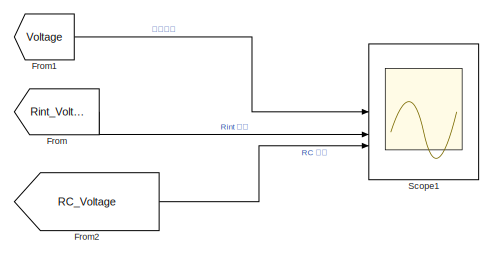
[diagram: root canvas - part 1/5, top right region]
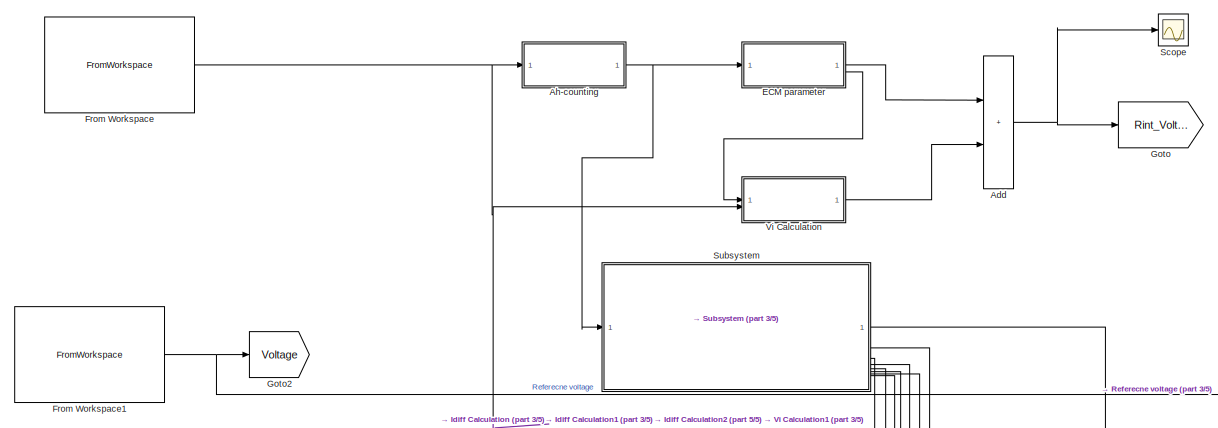
[diagram: root canvas - part 2/5, top left region]
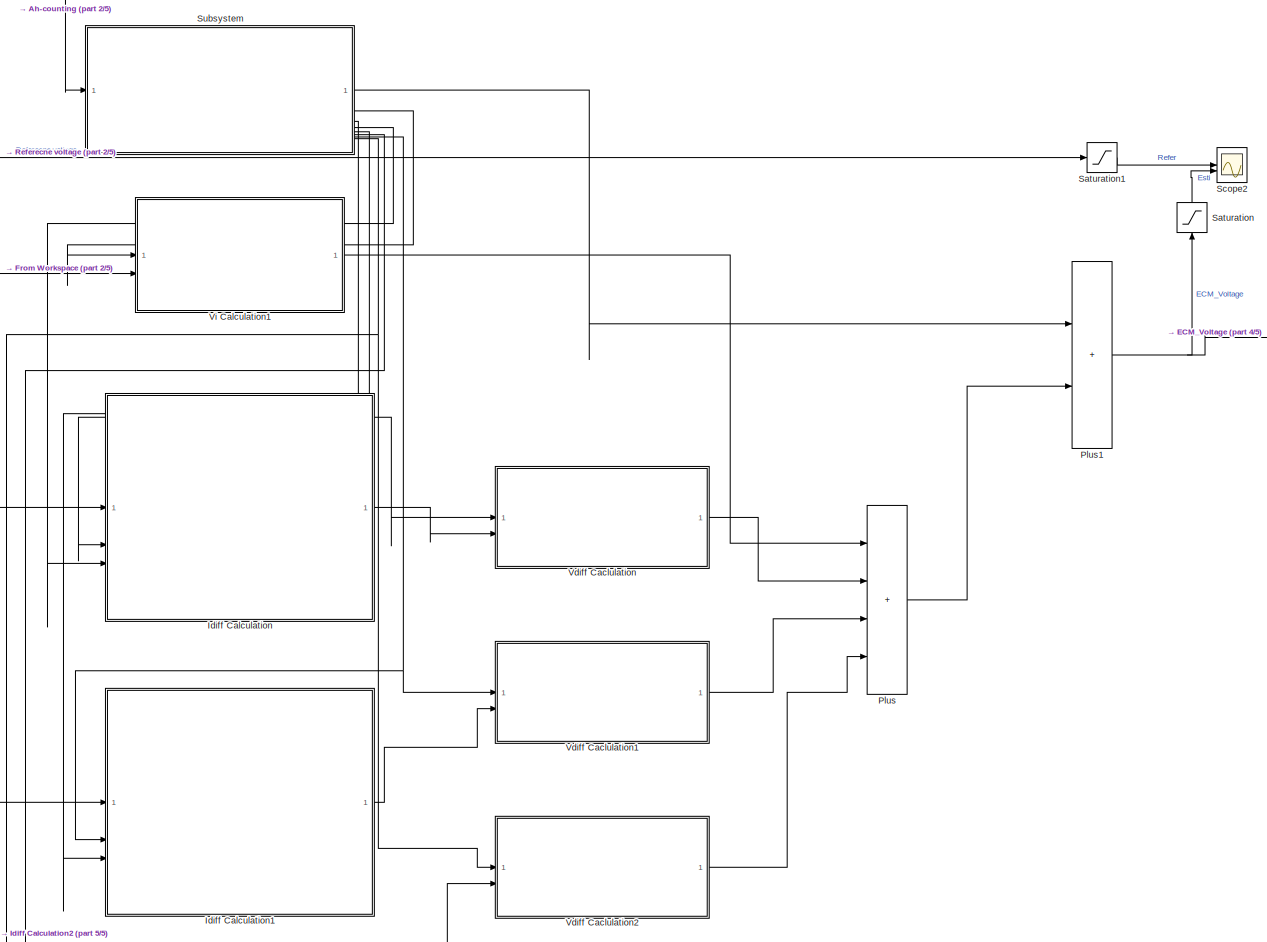
[diagram: root canvas - part 3/5, central region]
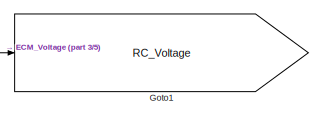
[diagram: root canvas - part 4/5, middle right region]
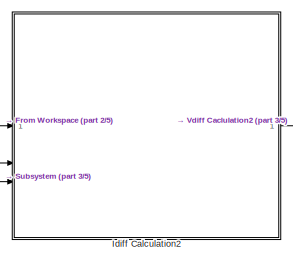
[diagram: root canvas - part 5/5, bottom center region]
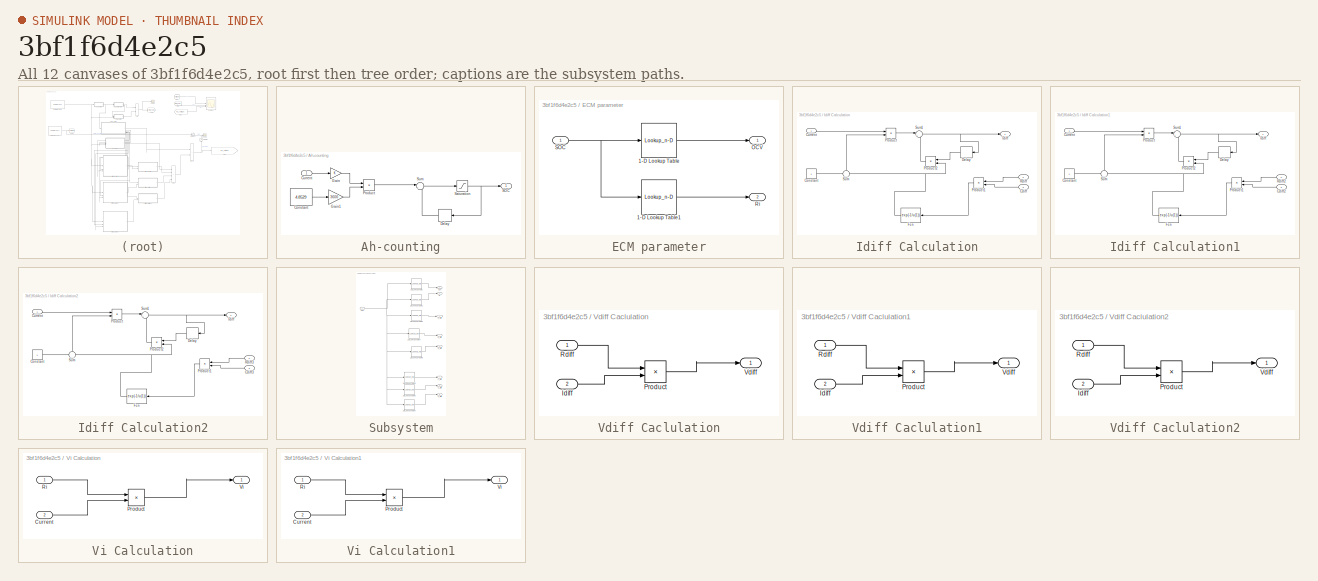
[diagram: thumbnail index - all 12 canvases of the model, root first then tree order]
MODEL slx_3bf1f6d4e2c5
KIND model
CONFIG AbsTol = auto
CONFIG EnableMultiTasking = off
CONFIG FixedStep = auto
CONFIG MaxStep = auto
CONFIG MinStep = auto
CONFIG RelTol = 1e-3
CONFIG SampleTimeConstraint = Unconstrained
CONFIG SolverName = VariableStepAuto
CONFIG StartTime = 0.0
CONFIG StopTime = length(Current)
BLOCK [Sum] Add
  Commented = on
  IconShape = rectangular
BLOCK [SubSystem] Ah-counting
BLOCK [Constant] Ah-counting/Constant
  Value = 4.8529
BLOCK [Inport] Ah-counting/Current
BLOCK [Delay] Ah-counting/Delay
  DelayLength = 1
  InitialCondition = 1
  InputPortMap = u0
  NameLocation = top
BLOCK [Gain] Ah-counting/Gain
BLOCK [Gain] Ah-counting/Gain1
  Gain = 3600
BLOCK [Product] Ah-counting/Product
  Inputs = */
BLOCK [Outport] Ah-counting/SOC
BLOCK [Saturate] Ah-counting/Saturation
  LowerLimit = 0
  UpperLimit = 1
BLOCK [Sum] Ah-counting/Sum
  Inputs = |++
BLOCK [SubSystem] ECM parameter
  Commented = on
BLOCK [Lookup_n-D] ECM parameter/1-D Lookup Table
  BreakpointsForDimension1 = SOC(:,1);
  InputPortMap = u0
  InternalRulePriority = Speed
  NumberOfTableDimensions = 1
  RndMeth = Simplest
  Table = OCV(:,1);
BLOCK [Lookup_n-D] ECM parameter/1-D Lookup Table1
  BreakpointsForDimension1 = SOC(:,1);
  InputPortMap = u0
  InternalRulePriority = Speed
  NumberOfTableDimensions = 1
  RndMeth = Simplest
  Table = Ri(:,1);
BLOCK [Outport] ECM parameter/OCV
BLOCK [Outport] ECM parameter/Ri
  Port = 2
BLOCK [Inport] ECM parameter/SOC
BLOCK [From] From
  Commented = on
  GotoTag = Rint_Voltage
  TagVisibility = global
BLOCK [FromWorkspace] From Workspace
  OutDataTypeStr = double
  SampleTime = 1
  VariableName = Current_in
BLOCK [FromWorkspace] From Workspace1
  OutDataTypeStr = double
  SampleTime = 1
  VariableName = Voltage_in
BLOCK [From] From1
  Commented = on
  GotoTag = Voltage
  TagVisibility = global
BLOCK [From] From2
  Commented = on
  GotoTag = RC_Voltage
  TagVisibility = global
BLOCK [Goto] Goto
  Commented = on
  GotoTag = Rint_Voltage
  TagVisibility = global
BLOCK [Goto] Goto1
  GotoTag = RC_Voltage
  TagVisibility = global
BLOCK [Goto] Goto2
  GotoTag = Voltage
  TagVisibility = global
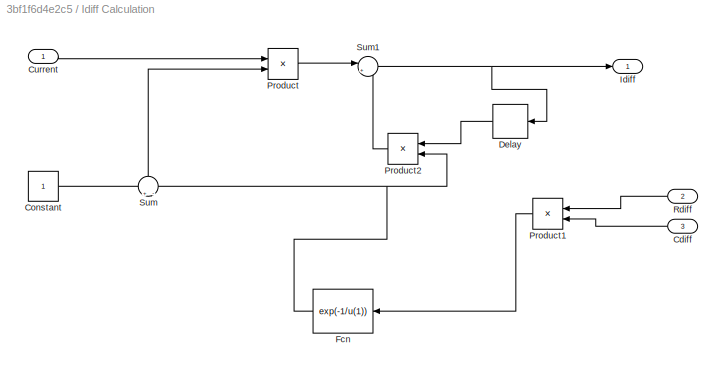
BLOCK [SubSystem] Idiff Calculation
BLOCK [Inport] Idiff Calculation/Cdiff
  NameLocation = top
  Port = 3
BLOCK [Constant] Idiff Calculation/Constant
BLOCK [Inport] Idiff Calculation/Current
BLOCK [Delay] Idiff Calculation/Delay
  DelayLength = 1
  InputPortMap = u0
  NameLocation = top
BLOCK [Fcn] Idiff Calculation/Fcn
  Expr = exp(-1/u(1))
  NameLocation = top
BLOCK [Outport] Idiff Calculation/Idiff
BLOCK [Product] Idiff Calculation/Product
BLOCK [Product] Idiff Calculation/Product1
  NameLocation = top
BLOCK [Product] Idiff Calculation/Product2
  NameLocation = top
BLOCK [Inport] Idiff Calculation/Rdiff
  NameLocation = top
  Port = 2
BLOCK [Sum] Idiff Calculation/Sum
  Inputs = +|-
  NameLocation = right
BLOCK [Sum] Idiff Calculation/Sum1
  Inputs = |++
BLOCK [SubSystem] Idiff Calculation1
BLOCK [Inport] Idiff Calculation1/Cdiff2
  NameLocation = top
  Port = 3
BLOCK [Constant] Idiff Calculation1/Constant
BLOCK [Inport] Idiff Calculation1/Current
BLOCK [Delay] Idiff Calculation1/Delay
  DelayLength = 1
  InputPortMap = u0
  NameLocation = top
BLOCK [Fcn] Idiff Calculation1/Fcn
  Expr = exp(-1/u(1))
  NameLocation = top
BLOCK [Outport] Idiff Calculation1/Idiff
BLOCK [Product] Idiff Calculation1/Product
BLOCK [Product] Idiff Calculation1/Product1
  NameLocation = top
BLOCK [Product] Idiff Calculation1/Product2
  NameLocation = top
BLOCK [Inport] Idiff Calculation1/Rdiff2
  NameLocation = top
  Port = 2
BLOCK [Sum] Idiff Calculation1/Sum
  Inputs = +|-
  NameLocation = right
BLOCK [Sum] Idiff Calculation1/Sum1
  Inputs = |++
BLOCK [SubSystem] Idiff Calculation2
BLOCK [Inport] Idiff Calculation2/Cdiff3
  NameLocation = top
  Port = 3
BLOCK [Constant] Idiff Calculation2/Constant
BLOCK [Inport] Idiff Calculation2/Current
BLOCK [Delay] Idiff Calculation2/Delay
  DelayLength = 1
  InputPortMap = u0
  NameLocation = top
BLOCK [Fcn] Idiff Calculation2/Fcn
  Expr = exp(-1/u(1))
  NameLocation = top
BLOCK [Outport] Idiff Calculation2/Idiff
BLOCK [Product] Idiff Calculation2/Product
BLOCK [Product] Idiff Calculation2/Product1
  NameLocation = top
BLOCK [Product] Idiff Calculation2/Product2
  NameLocation = top
BLOCK [Inport] Idiff Calculation2/Rdiff3
  NameLocation = top
  Port = 2
BLOCK [Sum] Idiff Calculation2/Sum
  Inputs = +|-
  NameLocation = right
BLOCK [Sum] Idiff Calculation2/Sum1
  Inputs = |++
BLOCK [Sum] Plus
  IconShape = rectangular
  Inputs = ++++
BLOCK [Sum] Plus1
  IconShape = rectangular
BLOCK [Saturate] Saturation
  LowerLimit = 2.0
  NameLocation = right
  UpperLimit = 4.5
BLOCK [Saturate] Saturation1
  LowerLimit = 2.0
  UpperLimit = 4.5
BLOCK [Scope] Scope
  Commented = on
  Floating = off
  GraphicalSettings = {"GraphicalSettings":{"LegacySettings":true,"Style":{"Style":{"PlotType":"Auto"}}}}
  NumInputPorts = 1
  WasSavedAsWebScope = on
BLOCK [Scope] Scope1
  ActiveDisplayYMaximum = 4.1440754219061109
  ActiveDisplayYMinimum = 2.8843352353917959
  Commented = on
  DataLoggingVariableName = ScopeData1
  Floating = off
  GraphicalSettings = {"AxesScalingProperties":{"AlignXAxis":"Center","AlignYAxis":"Center","AutoScaleXAxisLimits":false,"AxesScaling":"Manual","AxesScalingNumUpdates":10,"ExpandOnly":true,"ScaleAxesLimitsAtStop":false,"XAxisDataRange":100,"YAxisDataRange":80},"DisplayProperties":{"ColorOrder":["auto","auto","auto","auto","auto","auto","auto","auto","auto","auto","auto","auto","auto","auto","auto","auto","auto","auto",...<+2178ch>
  MultipleDisplayCache = [{"MaxYLimMag":10,"MaxYLimReal":4.1440754219061109,"MinYLimMag":0,"MinYLimReal":2.8843352353917959,"PlotAsMagnitudePhase":false,"ShowGrid":true,"ShowLegend":false,"Title":"%<SignalLabel>","YLabel":""}]
  NumInputPorts = 3
  ScopeFrameLocation = window
  WasSavedAsWebScope = on
  WindowPosition = [1053.000000,269.000000,560.000000,522.000000,]
BLOCK [Scope] Scope2
  ActiveDisplayYMaximum = 4.5143277697416666
  ActiveDisplayYMinimum = 1.3491711505560249
  ContainerLayout = {"WindowBounds":[483,105,1328,886]}
  DataLogging = on
  DataLoggingSaveFormat = Structure With Time
  DataLoggingVariableName = ScopeVoltage
  Floating = off
  GraphicalSettings = {"Style":{"BackgroundColor":[0.9607843137254902,0.9607843137254902,0.9607843137254902],"AxesColor":[1,1,1],"LabelsColor":[0.12941176470588237,0.12941176470588237,0.12941176470588237],"PreserveColors":false,"Visible":[true,true],"LineStyle":["-","-"],"LineWidth":[1.5,1.5],"BarWidth":[0.9,0.9],"LineColor":["auto","auto"],"LineFaceAlpha":[1,1],"LineEdgeAlpha":[1,1],"Marker":["none","none"],"FontSize"...<+2092ch>
  MultipleDisplayCache = [{"MaxYLimMag":4.41695951495885,"MaxYLimReal":4.5143277697416666,"MinYLimMag":2.1295647163703468,"MinYLimReal":1.3491711505560249,"PlotAsMagnitudePhase":false,"ShowGrid":true,"ShowLegend":false,"Title":"%<SignalLabel>","YLabel":""}]
  NumInputPorts = 2
  ScopeFrameLocation = container
  Visible = on
  WasSavedAsWebScope = on
  WindowPosition = [483.000000,89.000000,1328.000000,886.000000,]
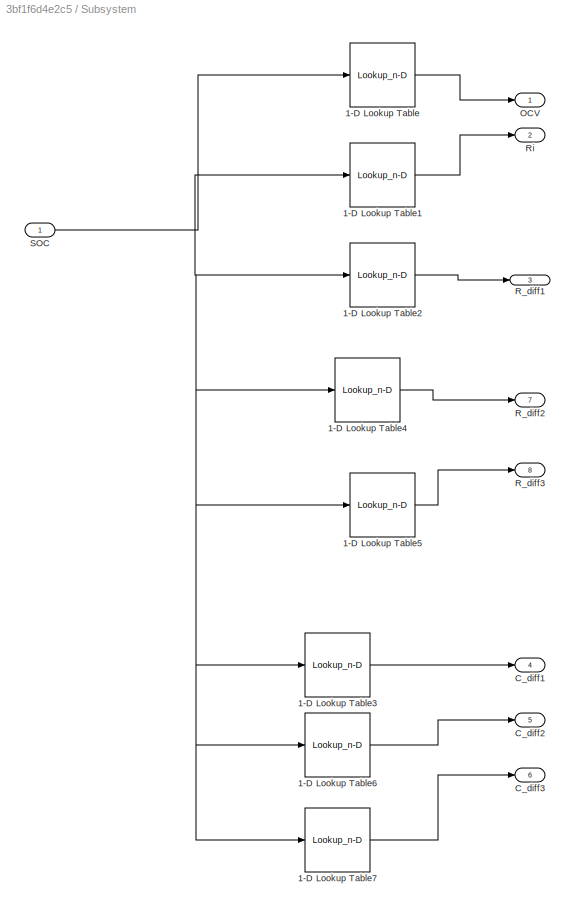
BLOCK [SubSystem] Subsystem
BLOCK [Lookup_n-D] Subsystem/1-D Lookup Table
  BreakpointsForDimension1 = SOC_OCV
  InputPortMap = u0
  InternalRulePriority = Speed
  NumberOfTableDimensions = 1
  RndMeth = Simplest
  Table = OCV_fit
BLOCK [Lookup_n-D] Subsystem/1-D Lookup Table1
  BreakpointsForDimension1 = SOC_RC
  InputPortMap = u0
  InternalRulePriority = Speed
  NumberOfTableDimensions = 1
  RndMeth = Simplest
  Table = R0_est
BLOCK [Lookup_n-D] Subsystem/1-D Lookup Table2
  BreakpointsForDimension1 = SOC_RC
  InputPortMap = u0
  InternalRulePriority = Speed
  NumberOfTableDimensions = 1
  RndMeth = Simplest
  Table = R1_est
BLOCK [Lookup_n-D] Subsystem/1-D Lookup Table3
  BreakpointsForDimension1 = SOC_RC
  InputPortMap = u0
  InternalRulePriority = Speed
  NumberOfTableDimensions = 1
  RndMeth = Simplest
  Table = C1_est
BLOCK [Lookup_n-D] Subsystem/1-D Lookup Table4
  BreakpointsForDimension1 = SOC_RC
  InputPortMap = u0
  InternalRulePriority = Speed
  NumberOfTableDimensions = 1
  RndMeth = Simplest
  Table = R2_est
BLOCK [Lookup_n-D] Subsystem/1-D Lookup Table5
  BreakpointsForDimension1 = SOC_RC
  InputPortMap = u0
  InternalRulePriority = Speed
  NumberOfTableDimensions = 1
  RndMeth = Simplest
  Table = R3_est
BLOCK [Lookup_n-D] Subsystem/1-D Lookup Table6
  BreakpointsForDimension1 = SOC_RC
  InputPortMap = u0
  InternalRulePriority = Speed
  NumberOfTableDimensions = 1
  RndMeth = Simplest
  Table = C2_est
BLOCK [Lookup_n-D] Subsystem/1-D Lookup Table7
  BreakpointsForDimension1 = SOC_RC
  InputPortMap = u0
  InternalRulePriority = Speed
  NumberOfTableDimensions = 1
  RndMeth = Simplest
  Table = C3_est
BLOCK [Outport] Subsystem/C_diff1
  Port = 4
BLOCK [Outport] Subsystem/C_diff2
  Port = 5
BLOCK [Outport] Subsystem/C_diff3
  Port = 6
BLOCK [Outport] Subsystem/OCV
BLOCK [Outport] Subsystem/R_diff1
  Port = 3
BLOCK [Outport] Subsystem/R_diff2
  Port = 7
BLOCK [Outport] Subsystem/R_diff3
  Port = 8
BLOCK [Outport] Subsystem/Ri
  Port = 2
BLOCK [Inport] Subsystem/SOC
BLOCK [SubSystem] Vdiff Caclulation
BLOCK [Inport] Vdiff Caclulation/Idiff
  Port = 2
BLOCK [Product] Vdiff Caclulation/Product
BLOCK [Inport] Vdiff Caclulation/Rdiff
BLOCK [Outport] Vdiff Caclulation/Vdiff
BLOCK [SubSystem] Vdiff Caclulation1
BLOCK [Inport] Vdiff Caclulation1/Idiff
  Port = 2
BLOCK [Product] Vdiff Caclulation1/Product
BLOCK [Inport] Vdiff Caclulation1/Rdiff
BLOCK [Outport] Vdiff Caclulation1/Vdiff
BLOCK [SubSystem] Vdiff Caclulation2
BLOCK [Inport] Vdiff Caclulation2/Idiff
  Port = 2
BLOCK [Product] Vdiff Caclulation2/Product
BLOCK [Inport] Vdiff Caclulation2/Rdiff
BLOCK [Outport] Vdiff Caclulation2/Vdiff
BLOCK [SubSystem] Vi Calculation
  Commented = on
BLOCK [Inport] Vi Calculation/Current
  Port = 2
BLOCK [Product] Vi Calculation/Product
BLOCK [Inport] Vi Calculation/Ri
BLOCK [Outport] Vi Calculation/Vi
BLOCK [SubSystem] Vi Calculation1
BLOCK [Inport] Vi Calculation1/Current
  Port = 2
BLOCK [Product] Vi Calculation1/Product
BLOCK [Inport] Vi Calculation1/Ri
BLOCK [Outport] Vi Calculation1/Vi
NET Add:1 -> Goto:1, Scope:1
LINE Ah-counting/Constant:1 -> Ah-counting/Gain1:1
LINE Ah-counting/Current:1 -> Ah-counting/Gain:1
LINE Ah-counting/Delay:1 -> Ah-counting/Sum:2
LINE Ah-counting/Gain1:1 -> Ah-counting/Product:2
LINE Ah-counting/Gain:1 -> Ah-counting/Product:1
LINE Ah-counting/Product:1 -> Ah-counting/Sum:1
NET Ah-counting/Saturation:1 -> Ah-counting/Delay:1, Ah-counting/SOC:1
LINE Ah-counting/Sum:1 -> Ah-counting/Saturation:1
NET Ah-counting:1 -> ECM parameter:1, Subsystem:1
LINE ECM parameter/1-D Lookup Table1:1 -> ECM parameter/Ri:1
LINE ECM parameter/1-D Lookup Table:1 -> ECM parameter/OCV:1
NET ECM parameter/SOC:1 -> ECM parameter/1-D Lookup Table1:1, ECM parameter/1-D Lookup Table:1
LINE ECM parameter:1 -> Add:1
LINE ECM parameter:2 -> Vi Calculation:1
NET From Workspace1:1 -> Goto2:1, Saturation1:1
NET From Workspace:1 -> Ah-counting:1, Idiff Calculation1:1, Idiff Calculation2:1, Idiff Calculation:1, Vi Calculation1:2, Vi Calculation:2
LINE From1:1 -> Scope1:1
LINE From2:1 -> Scope1:3
LINE From:1 -> Scope1:2
LINE Idiff Calculation/Cdiff:1 -> Idiff Calculation/Product1:2
LINE Idiff Calculation/Constant:1 -> Idiff Calculation/Sum:1
LINE Idiff Calculation/Current:1 -> Idiff Calculation/Product:1
LINE Idiff Calculation/Delay:1 -> Idiff Calculation/Product2:1
NET Idiff Calculation/Fcn:1 -> Idiff Calculation/Product2:2, Idiff Calculation/Sum:2
LINE Idiff Calculation/Product1:1 -> Idiff Calculation/Fcn:1
LINE Idiff Calculation/Product2:1 -> Idiff Calculation/Sum1:2
LINE Idiff Calculation/Product:1 -> Idiff Calculation/Sum1:1
LINE Idiff Calculation/Rdiff:1 -> Idiff Calculation/Product1:1
NET Idiff Calculation/Sum1:1 -> Idiff Calculation/Delay:1, Idiff Calculation/Idiff:1
LINE Idiff Calculation/Sum:1 -> Idiff Calculation/Product:2
LINE Idiff Calculation1/Cdiff2:1 -> Idiff Calculation1/Product1:2
LINE Idiff Calculation1/Constant:1 -> Idiff Calculation1/Sum:1
LINE Idiff Calculation1/Current:1 -> Idiff Calculation1/Product:1
LINE Idiff Calculation1/Delay:1 -> Idiff Calculation1/Product2:1
NET Idiff Calculation1/Fcn:1 -> Idiff Calculation1/Product2:2, Idiff Calculation1/Sum:2
LINE Idiff Calculation1/Product1:1 -> Idiff Calculation1/Fcn:1
LINE Idiff Calculation1/Product2:1 -> Idiff Calculation1/Sum1:2
LINE Idiff Calculation1/Product:1 -> Idiff Calculation1/Sum1:1
LINE Idiff Calculation1/Rdiff2:1 -> Idiff Calculation1/Product1:1
NET Idiff Calculation1/Sum1:1 -> Idiff Calculation1/Delay:1, Idiff Calculation1/Idiff:1
LINE Idiff Calculation1/Sum:1 -> Idiff Calculation1/Product:2
LINE Idiff Calculation1:1 -> Vdiff Caclulation1:2
LINE Idiff Calculation2/Cdiff3:1 -> Idiff Calculation2/Product1:2
LINE Idiff Calculation2/Constant:1 -> Idiff Calculation2/Sum:1
LINE Idiff Calculation2/Current:1 -> Idiff Calculation2/Product:1
LINE Idiff Calculation2/Delay:1 -> Idiff Calculation2/Product2:1
NET Idiff Calculation2/Fcn:1 -> Idiff Calculation2/Product2:2, Idiff Calculation2/Sum:2
LINE Idiff Calculation2/Product1:1 -> Idiff Calculation2/Fcn:1
LINE Idiff Calculation2/Product2:1 -> Idiff Calculation2/Sum1:2
LINE Idiff Calculation2/Product:1 -> Idiff Calculation2/Sum1:1
LINE Idiff Calculation2/Rdiff3:1 -> Idiff Calculation2/Product1:1
NET Idiff Calculation2/Sum1:1 -> Idiff Calculation2/Delay:1, Idiff Calculation2/Idiff:1
LINE Idiff Calculation2/Sum:1 -> Idiff Calculation2/Product:2
LINE Idiff Calculation2:1 -> Vdiff Caclulation2:2
LINE Idiff Calculation:1 -> Vdiff Caclulation:2
NET Plus1:1 -> Goto1:1, Saturation:1
LINE Plus:1 -> Plus1:2
LINE Saturation1:1 -> Scope2:1
LINE Saturation:1 -> Scope2:2
LINE Subsystem/1-D Lookup Table1:1 -> Subsystem/Ri:1
LINE Subsystem/1-D Lookup Table2:1 -> Subsystem/R_diff1:1
LINE Subsystem/1-D Lookup Table3:1 -> Subsystem/C_diff1:1
LINE Subsystem/1-D Lookup Table4:1 -> Subsystem/R_diff2:1
LINE Subsystem/1-D Lookup Table5:1 -> Subsystem/R_diff3:1
LINE Subsystem/1-D Lookup Table6:1 -> Subsystem/C_diff2:1
LINE Subsystem/1-D Lookup Table7:1 -> Subsystem/C_diff3:1
LINE Subsystem/1-D Lookup Table:1 -> Subsystem/OCV:1
NET Subsystem/SOC:1 -> Subsystem/1-D Lookup Table1:1, Subsystem/1-D Lookup Table2:1, Subsystem/1-D Lookup Table3:1, Subsystem/1-D Lookup Table4:1, Subsystem/1-D Lookup Table5:1, Subsystem/1-D Lookup Table6:1, Subsystem/1-D Lookup Table7:1, Subsystem/1-D Lookup Table:1
LINE Subsystem:1 -> Plus1:1
LINE Subsystem:2 -> Vi Calculation1:1
NET Subsystem:3 -> Idiff Calculation:2, Vdiff Caclulation:1
LINE Subsystem:4 -> Idiff Calculation:3
LINE Subsystem:5 -> Idiff Calculation1:3
LINE Subsystem:6 -> Idiff Calculation2:3
NET Subsystem:7 -> Idiff Calculation1:2, Vdiff Caclulation1:1
NET Subsystem:8 -> Idiff Calculation2:2, Vdiff Caclulation2:1
LINE Vdiff Caclulation/Idiff:1 -> Vdiff Caclulation/Product:2
LINE Vdiff Caclulation/Product:1 -> Vdiff Caclulation/Vdiff:1
LINE Vdiff Caclulation/Rdiff:1 -> Vdiff Caclulation/Product:1
LINE Vdiff Caclulation1/Idiff:1 -> Vdiff Caclulation1/Product:2
LINE Vdiff Caclulation1/Product:1 -> Vdiff Caclulation1/Vdiff:1
LINE Vdiff Caclulation1/Rdiff:1 -> Vdiff Caclulation1/Product:1
LINE Vdiff Caclulation1:1 -> Plus:3
LINE Vdiff Caclulation2/Idiff:1 -> Vdiff Caclulation2/Product:2
LINE Vdiff Caclulation2/Product:1 -> Vdiff Caclulation2/Vdiff:1
LINE Vdiff Caclulation2/Rdiff:1 -> Vdiff Caclulation2/Product:1
LINE Vdiff Caclulation2:1 -> Plus:4
LINE Vdiff Caclulation:1 -> Plus:2
LINE Vi Calculation/Current:1 -> Vi Calculation/Product:2
LINE Vi Calculation/Product:1 -> Vi Calculation/Vi:1
LINE Vi Calculation/Ri:1 -> Vi Calculation/Product:1
LINE Vi Calculation1/Current:1 -> Vi Calculation1/Product:2
LINE Vi Calculation1/Product:1 -> Vi Calculation1/Vi:1
LINE Vi Calculation1/Ri:1 -> Vi Calculation1/Product:1
LINE Vi Calculation1:1 -> Plus:1
LINE Vi Calculation:1 -> Add:2
note: NET lines group one-source signal fan-out (src -> all destinations, sorted); 1:1 wires keep LINE
